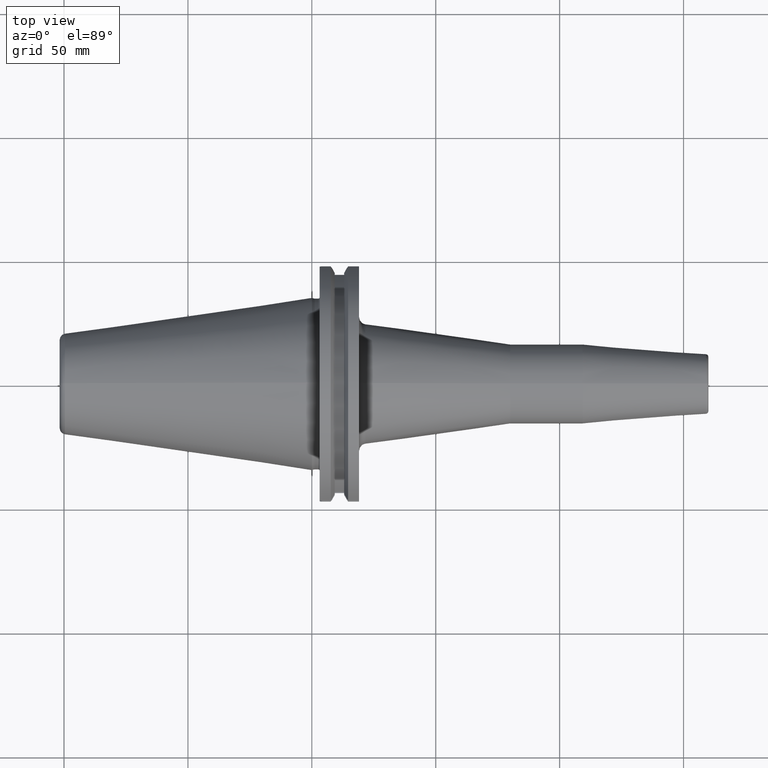
[diagram: clean part render]
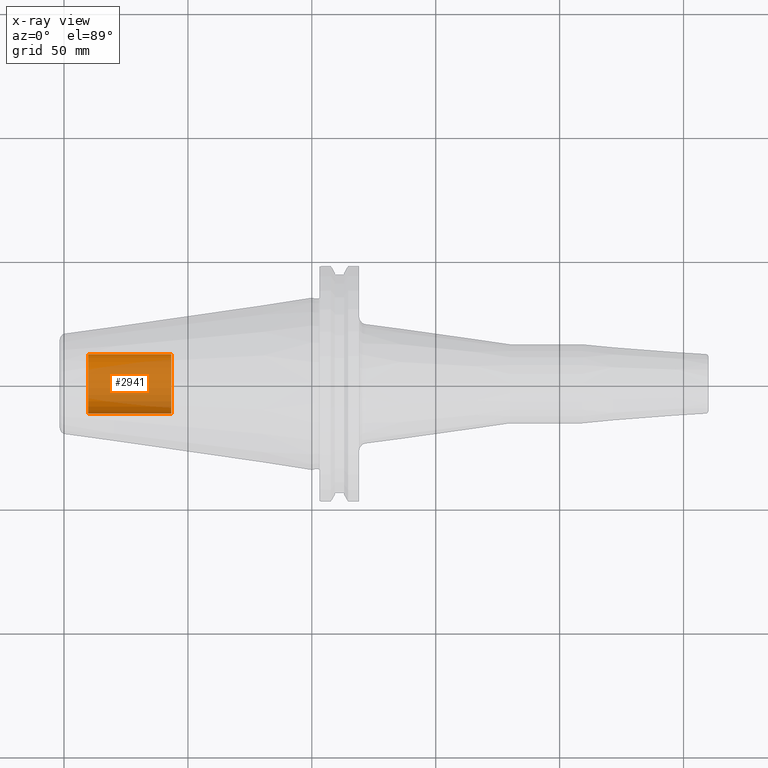
[diagram: x-ray — body ghosted, one internal face saturated and labeled with its STEP entity id]
A machine part, top view, then the same camera in x-ray: the body is ghosted and one INTERNAL B-rep face — a face not visible from any outside direction — is saturated and labeled: STEP entity #2941.
In plain terms, the highlighted cylindrical surface (edge-blend (fillet) strip) has radius 12 mm, axis along (-1, 0, 0).
Its self-contained STEP definition (entity closure, byte-faithful):
#2876=CARTESIAN_POINT('',(-9.025E1,0.E0,0.E0));
#2877=DIRECTION('',(1.E0,0.E0,0.E0));
#2878=DIRECTION('',(0.E0,-1.E0,0.E0));
#2879=AXIS2_PLACEMENT_3D('',#2876,#2877,#2878);
#2886=DIRECTION('',(1.E0,0.E0,0.E0));
#2887=VECTOR('',#2886,3.35E1);
#2888=CARTESIAN_POINT('',(-9.025E1,-1.2E1,0.E0));
#2889=LINE('',#2888,#2887);
#2890=DIRECTION('',(1.E0,0.E0,0.E0));
#2891=VECTOR('',#2890,3.35E1);
#2892=CARTESIAN_POINT('',(-9.025E1,1.2E1,0.E0));
#2893=LINE('',#2892,#2891);
#2899=CARTESIAN_POINT('',(-5.675E1,0.E0,0.E0));
#2900=DIRECTION('',(-1.E0,0.E0,0.E0));
#2901=DIRECTION('',(0.E0,1.E0,0.E0));
#2902=AXIS2_PLACEMENT_3D('',#2899,#2900,#2901);
#2914=CARTESIAN_POINT('',(-5.675E1,1.2E1,0.E0));
#2915=CARTESIAN_POINT('',(-5.675E1,-1.2E1,0.E0));
#2916=VERTEX_POINT('',#2914);
#2917=VERTEX_POINT('',#2915);
#2918=CARTESIAN_POINT('',(-9.025E1,1.2E1,0.E0));
#2919=CARTESIAN_POINT('',(-9.025E1,-1.2E1,0.E0));
#2920=VERTEX_POINT('',#2918);
#2921=VERTEX_POINT('',#2919);
#2926=CARTESIAN_POINT('',(-2.162551167522E1,0.E0,0.E0));
#2927=DIRECTION('',(-1.E0,0.E0,0.E0));
#2928=DIRECTION('',(0.E0,1.E0,0.E0));
#2929=AXIS2_PLACEMENT_3D('',#2926,#2927,#2928);
#2930=CYLINDRICAL_SURFACE('',#2929,1.2E1);
#2932=ORIENTED_EDGE('',*,*,#2931,.T.);
#2934=ORIENTED_EDGE('',*,*,#2933,.T.);
#2936=ORIENTED_EDGE('',*,*,#2935,.T.);
#2938=ORIENTED_EDGE('',*,*,#2937,.F.);
#2939=EDGE_LOOP('',(#2932,#2934,#2936,#2938));
#2940=FACE_OUTER_BOUND('',#2939,.F.);
#2941=ADVANCED_FACE('',(#2940),#2930,.F.);
#2880=CIRCLE('',#2879,1.2E1);
#2903=CIRCLE('',#2902,1.2E1);
#2931=EDGE_CURVE('',#2921,#2920,#2880,.T.);
#2933=EDGE_CURVE('',#2920,#2916,#2893,.T.);
#2935=EDGE_CURVE('',#2916,#2917,#2903,.T.);
#2937=EDGE_CURVE('',#2921,#2917,#2889,.T.);